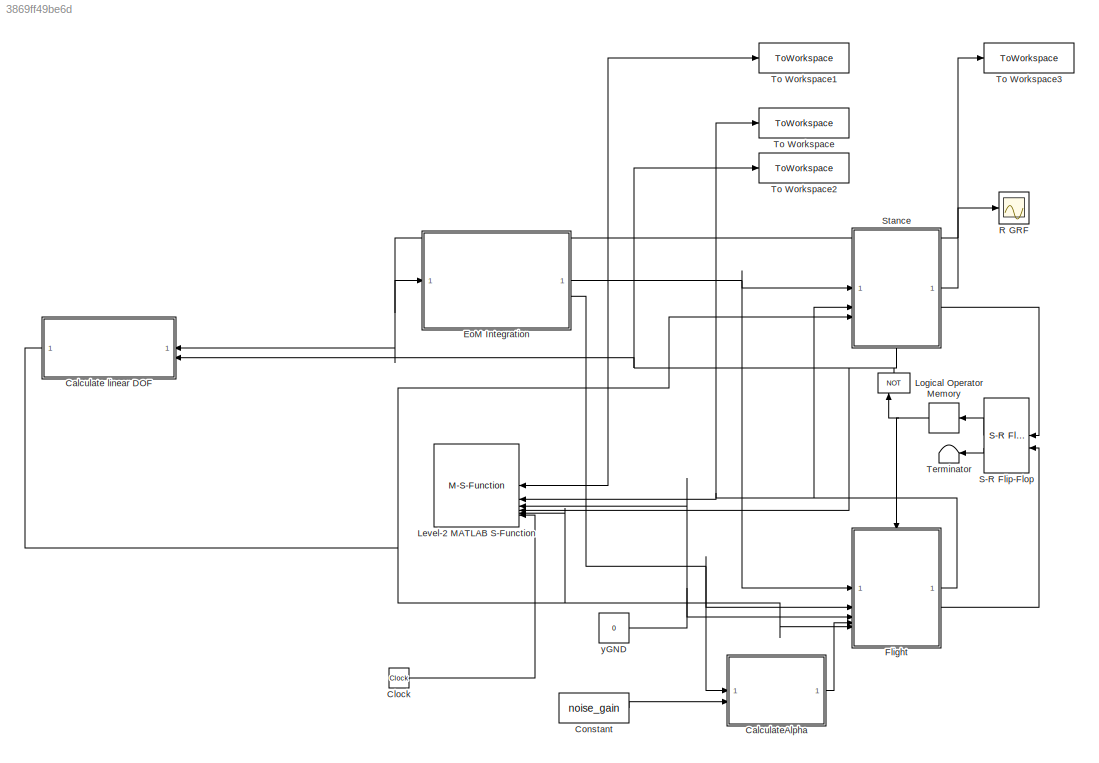
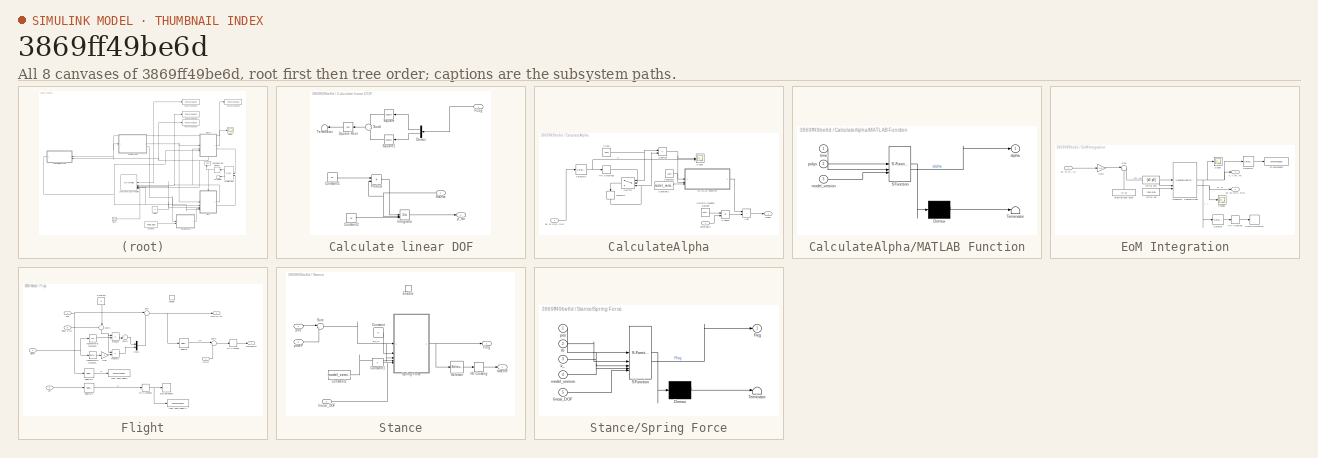
[diagram: thumbnail index - all 8 canvases of the model, root first then tree order]
MODEL slx_3869ff49be6d
KIND model
CONFIG AbsTol = auto
CONFIG EnableMultiTasking = off
CONFIG FixedStep = 0.001
CONFIG MaxStep = 1e-3
CONFIG MinStep = auto
CONFIG RelTol = 1e-3
CONFIG SampleTimeConstraint = Unconstrained
CONFIG SolverName = FixedStepAuto
CONFIG StartTime = 0.0
CONFIG StopTime = 2
BLOCK [SubSystem] Calculate linear DOF
  NameLocation = top
BLOCK [Constant] Calculate linear DOF/Constant1
  Value = pK
BLOCK [Constant] Calculate linear DOF/Constant2
  Value = p0
BLOCK [Demux] Calculate linear DOF/Demux
  Commented = on
  NameLocation = top
  Outputs = 2
BLOCK [Inport] Calculate linear DOF/FLeg
BLOCK [Integrator] Calculate linear DOF/Integrator
  ExternalReset = falling
  InitialConditionSource = external
BLOCK [Product] Calculate linear DOF/Product
BLOCK [Math] Calculate linear DOF/Square
  Commented = on
  NameLocation = top
  Operator = square
BLOCK [Sqrt] Calculate linear DOF/Square Root
  Commented = on
  NameLocation = top
BLOCK [Math] Calculate linear DOF/Square1
  Commented = on
  NameLocation = top
  Operator = square
BLOCK [Inport] Calculate linear DOF/Stance
  Port = 2
BLOCK [Sum] Calculate linear DOF/Sum1
  Commented = on
  Inputs = +|+
  NameLocation = top
BLOCK [Terminator] Calculate linear DOF/Terminator
  Commented = on
  NameLocation = top
BLOCK [Outport] Calculate linear DOF/p_cur
BLOCK [SubSystem] CalculateAlpha
BLOCK [Sum] CalculateAlpha/Add
  IconShape = rectangular
BLOCK [Clock] CalculateAlpha/Clock
BLOCK [Constant] CalculateAlpha/Constant1
  Value = polys
BLOCK [Constant] CalculateAlpha/Constant2
  Value = model_version
BLOCK [HitCross] CalculateAlpha/Hit Crossing2
  HitCrossingDirection = falling
  HitCrossingOffset = eps
BLOCK [SubSystem] CalculateAlpha/MATLAB Function
  ErrorFcn = Stateflow.Translate.translate
  PermitHierarchicalResolution = ExplicitOnly
  SFBlockType = MATLAB Function
  TreatAsAtomicUnit = on
BLOCK [Demux] CalculateAlpha/MATLAB Function/ Demux 
  Outputs = 1
BLOCK [S-Function] CalculateAlpha/MATLAB Function/ SFunction 
  EnableBusSupport = on
  FunctionName = sf_sfun
  PortCounts = [3 2]
  SFcnIsStateOwnerBlock = off
  SFunctionDeploymentMode = off
  Tag = Stateflow S-Function 1
BLOCK [Terminator] CalculateAlpha/MATLAB Function/ Terminator 
BLOCK [Outport] CalculateAlpha/MATLAB Function/alpha
BLOCK [Inport] CalculateAlpha/MATLAB Function/model_version
  Port = 3
BLOCK [Inport] CalculateAlpha/MATLAB Function/polys
  Port = 2
BLOCK [Inport] CalculateAlpha/MATLAB Function/time
BLOCK [Memory] CalculateAlpha/Memory1
  NameLocation = left
BLOCK [Product] CalculateAlpha/Product
BLOCK [Scope] CalculateAlpha/Scope
  Floating = off
  NumInputPorts = 2
  ScopeSpecificationString = Simulink.scopes.TimeScopeBlockCfg('CurrentConfiguration', extmgr.ConfigurationSet(extmgr.Configuration('Core','General UI',true),extmgr.Configuration('Core','Source UI',true),extmgr.Configuration('Sources','WiredSimulink',true,'DataLoggingVariableName','ScopeData1'),extmgr.Configuration('Visuals','Time Domain',true,'SerializedDisplays',{struct('MinYLimReal','-0.10432','MaxYLimReal','0.93891','YLab...<+1559ch>
BLOCK [Selector] CalculateAlpha/Selector3
  IndexOptions = Index vector (dialog)
  Indices = 2
  InputPortWidth = 2
  OutputSizes = 1
BLOCK [Sum] CalculateAlpha/Subtract
  IconShape = rectangular
  Inputs = +-
BLOCK [Switch] CalculateAlpha/Switch
  Criteria = u2 ~= 0
  InputSameDT = off
  NameLocation = top
  SaturateOnIntegerOverflow = off
BLOCK [UniformRandomNumber] CalculateAlpha/Uniform Random Number
  SampleTime = 0.1
  Seed = noise_seed
BLOCK [Outport] CalculateAlpha/alpha
BLOCK [Inport] CalculateAlpha/dx, dy [m//s, m//s]
BLOCK [Inport] CalculateAlpha/noise gain
  Port = 2
BLOCK [Clock] Clock
BLOCK [Constant] Constant
  Value = noise_gain
BLOCK [SubSystem] EoM Integration
BLOCK [Inport] EoM Integration/Fx, Fy [N, N]
BLOCK [Gain] EoM Integration/Gain
  Gain = 1/m
BLOCK [HitCross] EoM Integration/Hit Crossing
  HitCrossingDirection = falling
BLOCK [SecondOrderIntegrator] EoM Integration/Integrator, Second-Order
  ICSourceDXDT = external
  ICSourceX = external
BLOCK [Scope] EoM Integration/Scope
  Floating = off
  NumInputPorts = 1
  ScopeSpecificationString = Simulink.scopes.TimeScopeBlockCfg('CurrentConfiguration', extmgr.ConfigurationSet(extmgr.Configuration('Core','General UI',true),extmgr.Configuration('Core','Source UI',true),extmgr.Configuration('Sources','WiredSimulink',true,'DataLoggingVariableName','ScopeData1'),extmgr.Configuration('Visuals','Time Domain',true,'SerializedDisplays',{struct('MinYLimReal','-0.35678','MaxYLimReal','3.21098','YLab...<+2000ch>
BLOCK [Scope] EoM Integration/Scope1
  Floating = off
  NumInputPorts = 1
  ScopeSpecificationString = Simulink.scopes.TimeScopeBlockCfg('CurrentConfiguration', extmgr.ConfigurationSet(extmgr.Configuration('Core','General UI',true),extmgr.Configuration('Core','Source UI',true),extmgr.Configuration('Sources','WiredSimulink',true,'DataLoggingVariableName','ScopeData2'),extmgr.Configuration('Visuals','Time Domain',true,'SerializedDisplays',{struct('MinYLimReal','-3.6123','MaxYLimReal','6.41414','YLabe...<+1829ch>
BLOCK [Selector] EoM Integration/Selector
  IndexOptions = Index vector (dialog)
  Indices = 2
  InputPortWidth = 2
  OutputSizes = 1
BLOCK [Selector] EoM Integration/Selector1
  IndexOptions = Index vector (dialog)
  Indices = 2
  InputPortWidth = 2
  OutputSizes = 1
BLOCK [Stop] EoM Integration/Stop Simulation
BLOCK [Sum] EoM Integration/Sum
  Inputs = |++
BLOCK [ToWorkspace] EoM Integration/To Workspace
  FixptAsFi = on
  MaxDataPoints = inf
  SampleTime = -1
  Save2DSignal = 2-D array (concatenate along first dimension)
  SaveFormat = Structure
  VariableName = y
BLOCK [Outport] EoM Integration/dx, dy [m//s, m//s]
  Port = 2
BLOCK [Constant] EoM Integration/gravitational accel
  Value = [0 -g]
BLOCK [Constant] EoM Integration/initial pos
  Value = [x0 y0]
BLOCK [Constant] EoM Integration/initial vel
  Value = [dx0 dy0]
BLOCK [Outport] EoM Integration/x, y [m, m]
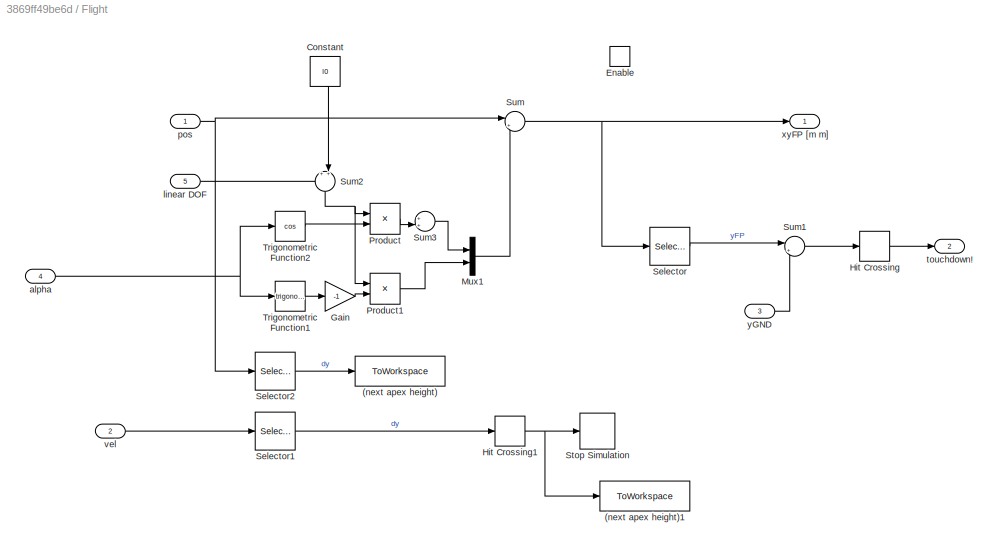
BLOCK [SubSystem] Flight
BLOCK [ToWorkspace] Flight/(next apex height)
  FixptAsFi = on
  MaxDataPoints = 1
  SampleTime = -1
  VariableName = y1
BLOCK [ToWorkspace] Flight/(next apex height)1
  FixptAsFi = on
  MaxDataPoints = 1
  SampleTime = -1
  VariableName = apex_reached
BLOCK [Constant] Flight/Constant
  NameLocation = left
  Value = l0
BLOCK [EnablePort] Flight/Enable
  AttributesFormatString = when enabled: %<StatesWhenEnabling>
  StatesWhenEnabling = reset
BLOCK [Gain] Flight/Gain
  Gain = -1
BLOCK [HitCross] Flight/Hit Crossing
  HitCrossingDirection = falling
BLOCK [HitCross] Flight/Hit Crossing1
  HitCrossingDirection = falling
  HitCrossingOffset = eps
BLOCK [Mux] Flight/Mux1
  DisplayOption = bar
  Inputs = 2
BLOCK [Product] Flight/Product
BLOCK [Product] Flight/Product1
BLOCK [Selector] Flight/Selector
  IndexOptions = Index vector (dialog)
  Indices = 2
  InputPortWidth = 2
  OutputSizes = 1
BLOCK [Selector] Flight/Selector1
  IndexOptions = Index vector (dialog)
  Indices = 2
  InputPortWidth = 2
  OutputSizes = 1
BLOCK [Selector] Flight/Selector2
  IndexOptions = Index vector (dialog)
  Indices = 2
  InputPortWidth = 2
  OutputSizes = 1
BLOCK [Stop] Flight/Stop Simulation
  Commented = on
BLOCK [Sum] Flight/Sum
  Inputs = |++
BLOCK [Sum] Flight/Sum1
  Inputs = |+-
BLOCK [Sum] Flight/Sum2
  Inputs = ++|
  NameLocation = left
BLOCK [Sum] Flight/Sum3
  Inputs = ++|
BLOCK [Trigonometry] Flight/Trigonometric Function1
BLOCK [Trigonometry] Flight/Trigonometric Function2
  Operator = cos
BLOCK [Inport] Flight/alpha
  Port = 4
BLOCK [Inport] Flight/linear DOF
  Port = 5
BLOCK [Inport] Flight/pos
BLOCK [Outport] Flight/touchdown!
  AttributesFormatString = when disabled: %<OutputWhenDisabled>\ninitial: %<InitialOutput>
  InitialOutput = 0
  OutputWhenDisabled = reset
  Port = 2
BLOCK [Inport] Flight/vel
  Port = 2
BLOCK [Outport] Flight/xyFP [m m]
  AttributesFormatString = when disabled: %<OutputWhenDisabled>\ninitial: %<InitialOutput>
  InitialOutput = 0
BLOCK [Inport] Flight/yGND
  Port = 3
BLOCK [M-S-Function] Level-2 MATLAB S-Function
  Commented = on
  FunctionName = SMR_anim
  NameLocation = top
  Parameters = 0.01
BLOCK [Logic] Logical Operator
  AllPortsSameDT = off
  NameLocation = right
  Operator = NOT
  OutDataTypeStr = boolean
BLOCK [Memory] Memory
  InitialCondition = 1
  NameLocation = top
BLOCK [Scope] R GRF
  Floating = off
  NumInputPorts = 1
  ScopeSpecificationString = Simulink.scopes.TimeScopeBlockCfg('CurrentConfiguration', extmgr.ConfigurationSet(extmgr.Configuration('Core','General UI',true),extmgr.Configuration('Core','Source UI',true),extmgr.Configuration('Sources','WiredSimulink',true,'DataLoggingVariableName','ScopeData1'),extmgr.Configuration('Visuals','Time Domain',true,'SerializedDisplays',{struct('MinYLimReal','-1860.91589','MaxYLimReal','6217.70507'...<+1572ch>
BLOCK [Reference] S-R Flip-Flop  REF=simulink_extras/Flip Flops/S-R
Flip-Flop
  SourceBlock = simulink_extras/Flip Flops/S-R\nFlip-Flop
  SourceType = SRFlipFlop
BLOCK [SubSystem] Stance
  NameLocation = top
BLOCK [Constant] Stance/Constant
  Value = l0
BLOCK [Constant] Stance/Constant1
  Value = k
BLOCK [Constant] Stance/Constant2
  Value = model_version
BLOCK [EnablePort] Stance/Enable
  AttributesFormatString = when enabled: %<StatesWhenEnabling>
  StatesWhenEnabling = reset
BLOCK [Outport] Stance/Fleg
  AttributesFormatString = when disabled: %<OutputWhenDisabled>\ninitial: %<InitialOutput>
  InitialOutput = [0; 0]
  OutputWhenDisabled = reset
BLOCK [HitCross] Stance/Hit Crossing
  HitCrossingDirection = falling
BLOCK [Selector] Stance/Selector
  IndexOptions = Index vector (dialog)
  Indices = 2
  InputPortWidth = 2
  OutputSizes = 1
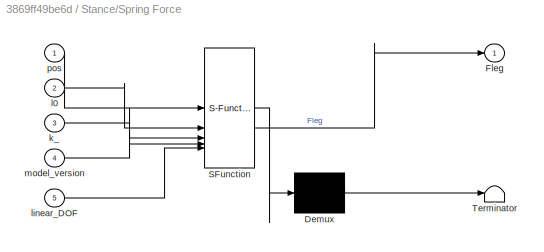
BLOCK [SubSystem] Stance/Spring Force
  ErrorFcn = Stateflow.Translate.translate
  PermitHierarchicalResolution = ExplicitOnly
  SFBlockType = MATLAB Function
  TreatAsAtomicUnit = on
BLOCK [Demux] Stance/Spring Force/ Demux 
  Outputs = 1
BLOCK [S-Function] Stance/Spring Force/ SFunction 
  EnableBusSupport = on
  FunctionName = sf_sfun
  PortCounts = [5 2]
  SFcnIsStateOwnerBlock = off
  SFunctionDeploymentMode = off
  Tag = Stateflow S-Function 2
BLOCK [Terminator] Stance/Spring Force/ Terminator 
BLOCK [Outport] Stance/Spring Force/Fleg
BLOCK [Inport] Stance/Spring Force/k_
  Port = 3
BLOCK [Inport] Stance/Spring Force/l0
  Port = 2
BLOCK [Inport] Stance/Spring Force/linear_DOF
  Port = 5
BLOCK [Inport] Stance/Spring Force/model_version
  Port = 4
BLOCK [Inport] Stance/Spring Force/pos
BLOCK [Sum] Stance/Sum
  Inputs = |+-
BLOCK [Inport] Stance/linear_DOF
  Port = 3
BLOCK [Inport] Stance/pos
BLOCK [Inport] Stance/posFP
  Port = 2
BLOCK [Outport] Stance/takeoff!
  AttributesFormatString = when disabled: %<OutputWhenDisabled>\ninitial: %<InitialOutput>
  InitialOutput = 0
  OutputWhenDisabled = reset
  Port = 2
BLOCK [Terminator] Terminator
  NameLocation = top
BLOCK [ToWorkspace] To Workspace
  FixptAsFi = on
  MaxDataPoints = inf
  SampleTime = -1
  SaveFormat = Timeseries
  VariableName = xyFP
BLOCK [ToWorkspace] To Workspace1
  FixptAsFi = on
  MaxDataPoints = inf
  SampleTime = -1
  SaveFormat = Timeseries
  VariableName = xy
BLOCK [ToWorkspace] To Workspace2
  FixptAsFi = on
  MaxDataPoints = inf
  SampleTime = -1
  SaveFormat = Timeseries
  VariableName = in_stance
BLOCK [ToWorkspace] To Workspace3
  FixptAsFi = on
  MaxDataPoints = inf
  SampleTime = -1
  SaveFormat = Timeseries
  VariableName = GRF
BLOCK [Constant] yGND
  Value = 0
LINE Calculate linear DOF/Constant1:1 -> Calculate linear DOF/Product:1
LINE Calculate linear DOF/Constant2:1 -> Calculate linear DOF/Integrator:3
LINE Calculate linear DOF/Demux:1 -> Calculate linear DOF/Square:1
LINE Calculate linear DOF/Demux:2 -> Calculate linear DOF/Square1:1
LINE Calculate linear DOF/FLeg:1 -> Calculate linear DOF/Demux:1
LINE Calculate linear DOF/Integrator:1 -> Calculate linear DOF/p_cur:1
LINE Calculate linear DOF/Product:1 -> Calculate linear DOF/Integrator:1
LINE Calculate linear DOF/Square Root:1 -> Calculate linear DOF/Terminator:1
LINE Calculate linear DOF/Square1:1 -> Calculate linear DOF/Sum1:2
LINE Calculate linear DOF/Square:1 -> Calculate linear DOF/Sum1:1
NET Calculate linear DOF/Stance:1 -> Calculate linear DOF/Integrator:2, Calculate linear DOF/Product:2
LINE Calculate linear DOF/Sum1:1 -> Calculate linear DOF/Square Root:1
NET Calculate linear DOF:1 -> Flight:5, Level-2 MATLAB S-Function:5, Stance:3
LINE CalculateAlpha/Add:1 -> CalculateAlpha/alpha:1
NET CalculateAlpha/Clock:1 -> CalculateAlpha/Subtract:1, CalculateAlpha/Switch:1
LINE CalculateAlpha/Constant1:1 -> CalculateAlpha/MATLAB Function:2
LINE CalculateAlpha/Constant2:1 -> CalculateAlpha/MATLAB Function:3
LINE CalculateAlpha/Hit Crossing2:1 -> CalculateAlpha/Switch:2
LINE CalculateAlpha/MATLAB Function:1 -> CalculateAlpha/Add:1
NET CalculateAlpha/Memory1:1 -> CalculateAlpha/Subtract:2, CalculateAlpha/Switch:3
LINE CalculateAlpha/Product:1 -> CalculateAlpha/Add:2
NET CalculateAlpha/Selector3:1 -> CalculateAlpha/Hit Crossing2:1, CalculateAlpha/Scope:2
NET CalculateAlpha/Subtract:1 -> CalculateAlpha/MATLAB Function:1, CalculateAlpha/Scope:1
LINE CalculateAlpha/Switch:1 -> CalculateAlpha/Memory1:1
LINE CalculateAlpha/Uniform Random Number:1 -> CalculateAlpha/Product:1
LINE CalculateAlpha/dx, dy [m//s, m//s]:1 -> CalculateAlpha/Selector3:1
LINE CalculateAlpha/noise gain:1 -> CalculateAlpha/Product:2
LINE CalculateAlpha:1 -> Flight:4
LINE Clock:1 -> Level-2 MATLAB S-Function:6
LINE Constant:1 -> CalculateAlpha:2
LINE EoM Integration/Fx, Fy [N, N]:1 -> EoM Integration/Gain:1
LINE EoM Integration/Gain:1 -> EoM Integration/Sum:1
LINE EoM Integration/Hit Crossing:1 -> EoM Integration/Stop Simulation:1
NET EoM Integration/Integrator, Second-Order:1 -> EoM Integration/Scope:1, EoM Integration/Selector1:1, EoM Integration/Selector:1, EoM Integration/x, y [m, m]:1
NET EoM Integration/Integrator, Second-Order:2 -> EoM Integration/Scope1:1, EoM Integration/dx, dy [m//s, m//s]:1
LINE EoM Integration/Selector1:1 -> EoM Integration/To Workspace:1
LINE EoM Integration/Selector:1 -> EoM Integration/Hit Crossing:1
LINE EoM Integration/Sum:1 -> EoM Integration/Integrator, Second-Order:1
LINE EoM Integration/gravitational accel:1 -> EoM Integration/Sum:2
LINE EoM Integration/initial pos:1 -> EoM Integration/Integrator, Second-Order:2
LINE EoM Integration/initial vel:1 -> EoM Integration/Integrator, Second-Order:3
NET EoM Integration:1 -> Flight:1, Level-2 MATLAB S-Function:1, Stance:1, To Workspace1:1
NET EoM Integration:2 -> CalculateAlpha:1, Flight:2
LINE Flight/Constant:1 -> Flight/Sum2:2
LINE Flight/Gain:1 -> Flight/Product1:2
NET Flight/Hit Crossing1:1 -> Flight/(next apex height)1:1, Flight/Stop Simulation:1
LINE Flight/Hit Crossing:1 -> Flight/touchdown!:1
LINE Flight/Mux1:1 -> Flight/Sum:2
LINE Flight/Product1:1 -> Flight/Mux1:2
LINE Flight/Product:1 -> Flight/Sum3:2
LINE Flight/Selector1:1 -> Flight/Hit Crossing1:1
LINE Flight/Selector2:1 -> Flight/(next apex height):1
LINE Flight/Selector:1 -> Flight/Sum1:1
LINE Flight/Sum1:1 -> Flight/Hit Crossing:1
NET Flight/Sum2:1 -> Flight/Product1:1, Flight/Product:1
LINE Flight/Sum3:1 -> Flight/Mux1:1
NET Flight/Sum:1 -> Flight/Selector:1, Flight/xyFP [m m]:1
LINE Flight/Trigonometric Function1:1 -> Flight/Gain:1
LINE Flight/Trigonometric Function2:1 -> Flight/Product:2
NET Flight/alpha:1 -> Flight/Trigonometric Function1:1, Flight/Trigonometric Function2:1
LINE Flight/linear DOF:1 -> Flight/Sum2:1
NET Flight/pos:1 -> Flight/Selector2:1, Flight/Sum:1
LINE Flight/vel:1 -> Flight/Selector1:1
LINE Flight/yGND:1 -> Flight/Sum1:2
NET Flight:1 -> Level-2 MATLAB S-Function:2, Stance:2, To Workspace:1
LINE Flight:2 -> S-R Flip-Flop:2
NET Logical Operator:1 -> Calculate linear DOF:2, Level-2 MATLAB S-Function:4, Stance:enable, To Workspace2:1
NET Memory:1 -> Flight:enable, Logical Operator:1
LINE S-R Flip-Flop:1 -> Memory:1
LINE S-R Flip-Flop:2 -> Terminator:1
LINE Stance/Constant1:1 -> Stance/Spring Force:3
LINE Stance/Constant2:1 -> Stance/Spring Force:4
LINE Stance/Constant:1 -> Stance/Spring Force:2
LINE Stance/Hit Crossing:1 -> Stance/takeoff!:1
LINE Stance/Selector:1 -> Stance/Hit Crossing:1
NET Stance/Spring Force:1 -> Stance/Fleg:1, Stance/Selector:1
LINE Stance/Sum:1 -> Stance/Spring Force:1
LINE Stance/linear_DOF:1 -> Stance/Spring Force:5
LINE Stance/pos:1 -> Stance/Sum:1
LINE Stance/posFP:1 -> Stance/Sum:2
NET Stance:1 -> Calculate linear DOF:1, EoM Integration:1, R GRF:1, To Workspace3:1
LINE Stance:2 -> S-R Flip-Flop:1
NET yGND:1 -> Flight:3, Level-2 MATLAB S-Function:3
note: NET lines group one-source signal fan-out (src -> all destinations, sorted); 1:1 wires keep LINE
CHART CalculateAlpha/MATLAB Function states=1 transitions=1
  STATE_LABEL 'eML_blk_kernel()'
  STATE_LABEL 'SCRIPT:\nfunction alpha = fcn(time, polys, model_version)\n\nalpha = polyval(polys(model_version,:), time);\n'
CHART Stance/Spring Force states=1 transitions=1
  STATE_LABEL 'eML_blk_kernel()'
  STATE_LABEL "SCRIPT:\nfunction Fleg  = fcn(pos, l0, k_, model_version, linear_DOF)\n\nl = sqrt(pos(1)^2 + pos(2)^2);\nk = k_;\nswitch model_version\n    case 1\n        k = k_;\n    case 2\n        k = k_*2;\n    case 3\n        if (l/(l0 + linear_DOF)) < 0.95\n            k = k_/2;\n        end\n    otherwise\n        error('Undefined model version')\nend\n\nFs = k * (l0 + linear_DOF - l);\n\nFleg = Fs / l * pos;\n\n"
CHART  states=0 transitions=0
CHART  states=0 transitions=0
